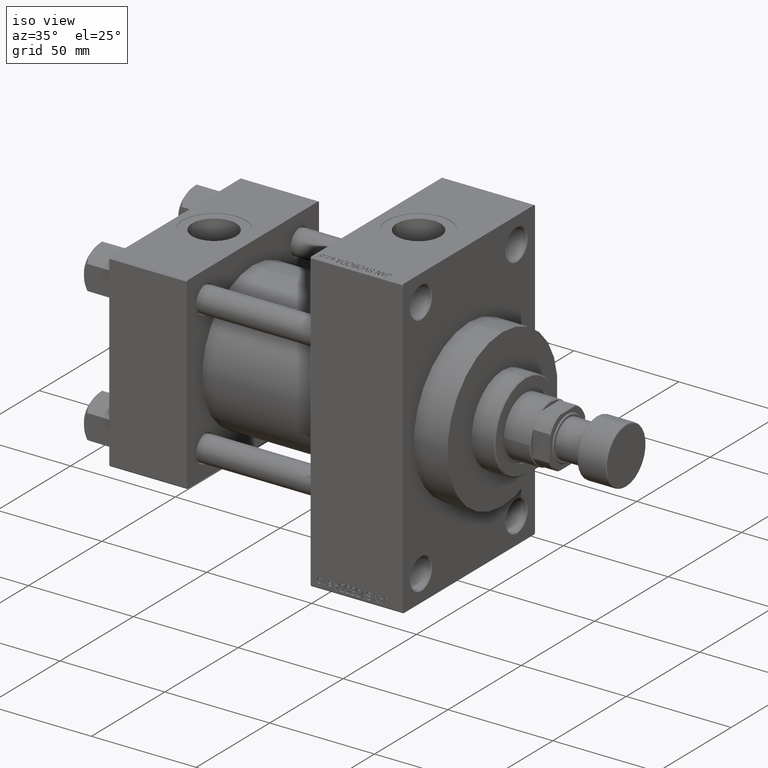
[diagram: clean part render]
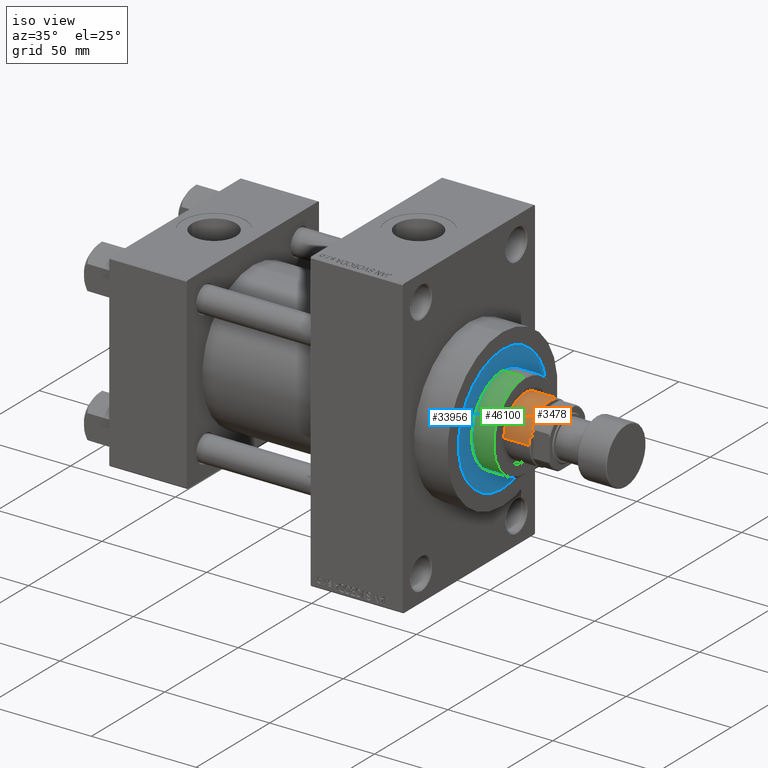
[diagram: same view with three faces highlighted in distinct colors, each labeled with its STEP entity id]
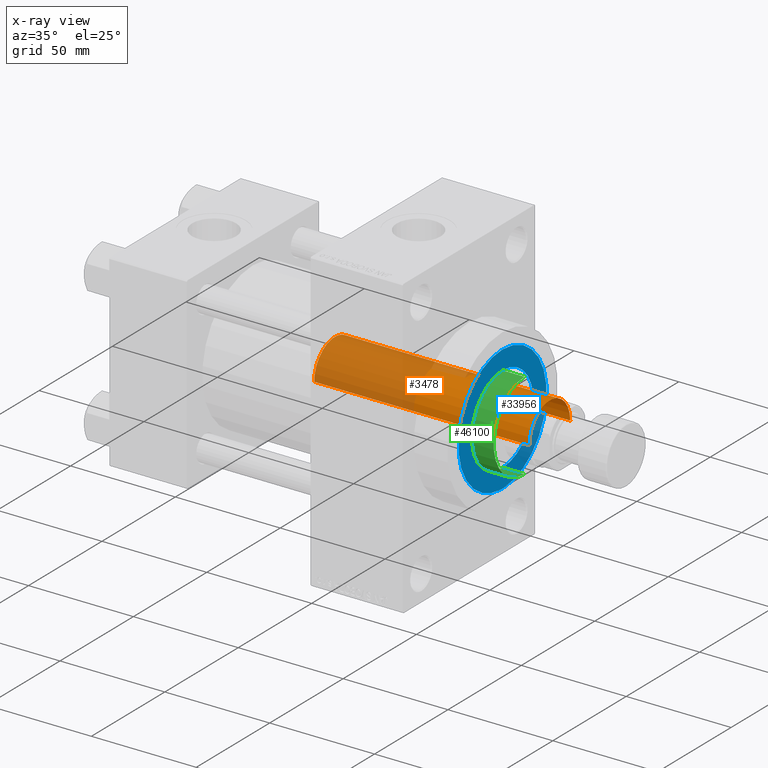
[diagram: x-ray of the same camera — body ghosted, the three highlighted faces saturated]
A machine part, iso view with three faces highlighted in distinct colors.
The next image is the same camera in x-ray (body ghosted, the three faces saturated) — at least one of them is partly hidden behind the body in this view.
Their STEP definitions:

[orange] entity #3478 — the highlighted cylindrical surface (edge-blend (fillet) strip) has radius 14 mm, axis along (-1, 0, 0).
#1417 = DIRECTION ( 'NONE',  ( 1.000000000000000000, 0.000000000000000000, 0.000000000000000000 ) ) ;
#1749 = LINE ( 'NONE', #37942, #23324 ) ;
#2419 = CARTESIAN_POINT ( 'NONE',  ( -14.00000000000000000, 0.000000000000000000, 141.5000000000000000 ) ) ;
#3478 = ADVANCED_FACE ( 'NONE', ( #19991 ), #31314, .T. ) ;
#7130 = DIRECTION ( 'NONE',  ( 1.000000000000000000, 0.000000000000000000, 0.000000000000000000 ) ) ;
#7936 = VERTEX_POINT ( 'NONE', #15333 ) ;
#8944 = EDGE_LOOP ( 'NONE', ( #19237, #32512, #42383, #46097 ) ) ;
#9697 = VERTEX_POINT ( 'NONE', #45314 ) ;
#13221 = DIRECTION ( 'NONE',  ( -1.000000000000000000, 0.000000000000000000, 0.000000000000000000 ) ) ;
#15333 = CARTESIAN_POINT ( 'NONE',  ( 14.00000000000000000, 1.714505518806294638E-15, 39.00000000000000000 ) ) ;
#17272 = CARTESIAN_POINT ( 'NONE',  ( 0.000000000000000000, 0.000000000000000000, 39.00000000000000000 ) ) ;
#19237 = ORIENTED_EDGE ( 'NONE', *, *, #19826, .F. ) ;
#19542 = AXIS2_PLACEMENT_3D ( 'NONE', #17272, #32215, #7130 ) ;
#19770 = CARTESIAN_POINT ( 'NONE',  ( 0.000000000000000000, 0.000000000000000000, 141.5000000000000000 ) ) ;
#19826 = EDGE_CURVE ( 'NONE', #25274, #7936, #1749, .T. ) ;
#19991 = FACE_OUTER_BOUND ( 'NONE', #8944, .T. ) ;
#20946 = CARTESIAN_POINT ( 'NONE',  ( -14.00000000000000000, 0.000000000000000000, 142.0000000000000000 ) ) ;
#21557 = AXIS2_PLACEMENT_3D ( 'NONE', #45998, #42629, #13221 ) ;
#23171 = AXIS2_PLACEMENT_3D ( 'NONE', #19770, #24091, #1417 ) ;
#23305 = EDGE_CURVE ( 'NONE', #35771, #9697, #31797, .T. ) ;
#23324 = VECTOR ( 'NONE', #37465, 1000.000000000000000 ) ;
#24091 = DIRECTION ( 'NONE',  ( 0.000000000000000000, 0.000000000000000000, -1.000000000000000000 ) ) ;
#24586 = EDGE_CURVE ( 'NONE', #9697, #7936, #45717, .T. ) ;
#25274 = VERTEX_POINT ( 'NONE', #27929 ) ;
#27929 = CARTESIAN_POINT ( 'NONE',  ( 14.00000000000000000, 1.714505518806294638E-15, 141.5000000000000000 ) ) ;
#28711 = VECTOR ( 'NONE', #46486, 1000.000000000000000 ) ;
#31314 = CYLINDRICAL_SURFACE ( 'NONE', #21557, 14.00000000000000000 ) ;
#31797 = LINE ( 'NONE', #20946, #28711 ) ;
#32215 = DIRECTION ( 'NONE',  ( 0.000000000000000000, 0.000000000000000000, 1.000000000000000000 ) ) ;
#32512 = ORIENTED_EDGE ( 'NONE', *, *, #38865, .T. ) ;
#35771 = VERTEX_POINT ( 'NONE', #2419 ) ;
#37465 = DIRECTION ( 'NONE',  ( -0.000000000000000000, -0.000000000000000000, -1.000000000000000000 ) ) ;
#37942 = CARTESIAN_POINT ( 'NONE',  ( 14.00000000000000000, 1.714505518806294638E-15, 142.0000000000000000 ) ) ;
#38865 = EDGE_CURVE ( 'NONE', #25274, #35771, #41640, .T. ) ;
#41640 = CIRCLE ( 'NONE', #23171, 14.00000000000000000 ) ;
#42383 = ORIENTED_EDGE ( 'NONE', *, *, #23305, .T. ) ;
#42629 = DIRECTION ( 'NONE',  ( -0.000000000000000000, -0.000000000000000000, -1.000000000000000000 ) ) ;
#45314 = CARTESIAN_POINT ( 'NONE',  ( -14.00000000000000000, 0.000000000000000000, 39.00000000000000000 ) ) ;
#45717 = CIRCLE ( 'NONE', #19542, 14.00000000000000000 ) ;
#45998 = CARTESIAN_POINT ( 'NONE',  ( 0.000000000000000000, 0.000000000000000000, 142.0000000000000000 ) ) ;
#46097 = ORIENTED_EDGE ( 'NONE', *, *, #24586, .T. ) ;
#46486 = DIRECTION ( 'NONE',  ( -0.000000000000000000, -0.000000000000000000, -1.000000000000000000 ) ) ;

[blue] entity #33956 — the highlighted planar face has unit normal (1, 0, 0).
#627 = VERTEX_POINT ( 'NONE', #44273 ) ;
#1702 = CIRCLE ( 'NONE', #17901, 21.00000000000000000 ) ;
#1858 = CARTESIAN_POINT ( 'NONE',  ( 21.00000000000000000, 2.571758278209441661E-15, 43.25999999999999801 ) ) ;
#3538 = DIRECTION ( 'NONE',  ( 1.000000000000000000, 0.000000000000000000, 0.000000000000000000 ) ) ;
#3653 = DIRECTION ( 'NONE',  ( 0.000000000000000000, 0.000000000000000000, 1.000000000000000000 ) ) ;
#5386 = DIRECTION ( 'NONE',  ( 0.000000000000000000, 0.000000000000000000, 1.000000000000000000 ) ) ;
#5627 = DIRECTION ( 'NONE',  ( 1.000000000000000000, 0.000000000000000000, 0.000000000000000000 ) ) ;
#6925 = AXIS2_PLACEMENT_3D ( 'NONE', #42101, #37777, #30541 ) ;
#6926 = EDGE_LOOP ( 'NONE', ( #25894, #30712 ) ) ;
#6982 = ORIENTED_EDGE ( 'NONE', *, *, #13621, .T. ) ;
#12019 = CIRCLE ( 'NONE', #37433, 30.00000000000000000 ) ;
#13186 = DIRECTION ( 'NONE',  ( 1.000000000000000000, 0.000000000000000000, 0.000000000000000000 ) ) ;
#13319 = CARTESIAN_POINT ( 'NONE',  ( -30.00000000000000000, 0.000000000000000000, 43.25999999999999801 ) ) ;
#13621 = EDGE_CURVE ( 'NONE', #44444, #38500, #23902, .T. ) ;
#14215 = CARTESIAN_POINT ( 'NONE',  ( 30.00000000000000000, 3.673940397442059178E-15, 43.25999999999999801 ) ) ;
#17628 = EDGE_CURVE ( 'NONE', #627, #43371, #1702, .T. ) ;
#17901 = AXIS2_PLACEMENT_3D ( 'NONE', #45966, #46202, #13186 ) ;
#19088 = CARTESIAN_POINT ( 'NONE',  ( 0.000000000000000000, 0.000000000000000000, 43.25999999999999801 ) ) ;
#23902 = CIRCLE ( 'NONE', #6925, 30.00000000000000000 ) ;
#25894 = ORIENTED_EDGE ( 'NONE', *, *, #17628, .F. ) ;
#26311 = FACE_BOUND ( 'NONE', #6926, .T. ) ;
#28049 = CARTESIAN_POINT ( 'NONE',  ( 0.000000000000000000, 0.000000000000000000, 43.25999999999999801 ) ) ;
#30192 = EDGE_CURVE ( 'NONE', #43371, #627, #40496, .T. ) ;
#30541 = DIRECTION ( 'NONE',  ( 1.000000000000000000, 0.000000000000000000, 0.000000000000000000 ) ) ;
#30693 = EDGE_CURVE ( 'NONE', #38500, #44444, #12019, .T. ) ;
#30712 = ORIENTED_EDGE ( 'NONE', *, *, #30192, .F. ) ;
#33063 = FACE_OUTER_BOUND ( 'NONE', #34792, .T. ) ;
#33956 = ADVANCED_FACE ( 'NONE', ( #26311, #33063 ), #41015, .T. ) ;
#34792 = EDGE_LOOP ( 'NONE', ( #43017, #6982 ) ) ;
#36103 = CARTESIAN_POINT ( 'NONE',  ( 0.000000000000000000, 0.000000000000000000, 43.25999999999999801 ) ) ;
#37433 = AXIS2_PLACEMENT_3D ( 'NONE', #36103, #43334, #3538 ) ;
#37777 = DIRECTION ( 'NONE',  ( 0.000000000000000000, 0.000000000000000000, 1.000000000000000000 ) ) ;
#38208 = AXIS2_PLACEMENT_3D ( 'NONE', #28049, #5386, #5627 ) ;
#38500 = VERTEX_POINT ( 'NONE', #13319 ) ;
#39743 = AXIS2_PLACEMENT_3D ( 'NONE', #19088, #3653, #40553 ) ;
#40496 = CIRCLE ( 'NONE', #38208, 21.00000000000000000 ) ;
#40553 = DIRECTION ( 'NONE',  ( 1.000000000000000000, 0.000000000000000000, -0.000000000000000000 ) ) ;
#41015 = PLANE ( 'NONE',  #39743 ) ;
#42101 = CARTESIAN_POINT ( 'NONE',  ( 0.000000000000000000, 0.000000000000000000, 43.25999999999999801 ) ) ;
#43017 = ORIENTED_EDGE ( 'NONE', *, *, #30693, .T. ) ;
#43334 = DIRECTION ( 'NONE',  ( 0.000000000000000000, 0.000000000000000000, 1.000000000000000000 ) ) ;
#43371 = VERTEX_POINT ( 'NONE', #1858 ) ;
#44273 = CARTESIAN_POINT ( 'NONE',  ( -21.00000000000000000, 0.000000000000000000, 43.25999999999999801 ) ) ;
#44444 = VERTEX_POINT ( 'NONE', #14215 ) ;
#45966 = CARTESIAN_POINT ( 'NONE',  ( 0.000000000000000000, 0.000000000000000000, 43.25999999999999801 ) ) ;
#46202 = DIRECTION ( 'NONE',  ( 0.000000000000000000, 0.000000000000000000, 1.000000000000000000 ) ) ;

[green] entity #46100 — the highlighted cylindrical surface (partial cylindrical patch) has radius 21 mm, axis along (-1, -0, 0).
#627 = VERTEX_POINT ( 'NONE', #44273 ) ;
#1702 = CIRCLE ( 'NONE', #17901, 21.00000000000000000 ) ;
#1756 = CARTESIAN_POINT ( 'NONE',  ( -21.00000000000000000, 0.000000000000000000, 54.26000000000000512 ) ) ;
#1858 = CARTESIAN_POINT ( 'NONE',  ( 21.00000000000000000, 2.571758278209441661E-15, 43.25999999999999801 ) ) ;
#2068 = VECTOR ( 'NONE', #24250, 1000.000000000000000 ) ;
#4161 = EDGE_LOOP ( 'NONE', ( #14811, #31542, #23736, #21357 ) ) ;
#5361 = LINE ( 'NONE', #1756, #13052 ) ;
#6889 = VERTEX_POINT ( 'NONE', #45212 ) ;
#8937 = CARTESIAN_POINT ( 'NONE',  ( 0.000000000000000000, 0.000000000000000000, 54.26000000000000512 ) ) ;
#9196 = VERTEX_POINT ( 'NONE', #24940 ) ;
#11987 = EDGE_CURVE ( 'NONE', #9196, #627, #5361, .T. ) ;
#13052 = VECTOR ( 'NONE', #30696, 1000.000000000000000 ) ;
#13186 = DIRECTION ( 'NONE',  ( 1.000000000000000000, 0.000000000000000000, 0.000000000000000000 ) ) ;
#13270 = CYLINDRICAL_SURFACE ( 'NONE', #16381, 21.00000000000000000 ) ;
#14811 = ORIENTED_EDGE ( 'NONE', *, *, #36134, .F. ) ;
#16381 = AXIS2_PLACEMENT_3D ( 'NONE', #8937, #31362, #27978 ) ;
#16652 = FACE_OUTER_BOUND ( 'NONE', #4161, .T. ) ;
#17628 = EDGE_CURVE ( 'NONE', #627, #43371, #1702, .T. ) ;
#17856 = EDGE_CURVE ( 'NONE', #6889, #9196, #34058, .T. ) ;
#17901 = AXIS2_PLACEMENT_3D ( 'NONE', #45966, #46202, #13186 ) ;
#18012 = CARTESIAN_POINT ( 'NONE',  ( 0.000000000000000000, 0.000000000000000000, 53.76000000000001933 ) ) ;
#21357 = ORIENTED_EDGE ( 'NONE', *, *, #17628, .T. ) ;
#23736 = ORIENTED_EDGE ( 'NONE', *, *, #11987, .T. ) ;
#24250 = DIRECTION ( 'NONE',  ( -0.000000000000000000, -0.000000000000000000, -1.000000000000000000 ) ) ;
#24940 = CARTESIAN_POINT ( 'NONE',  ( -21.00000000000000000, 0.000000000000000000, 53.76000000000001933 ) ) ;
#27856 = CARTESIAN_POINT ( 'NONE',  ( 21.00000000000000000, 2.571758278209441661E-15, 54.26000000000000512 ) ) ;
#27978 = DIRECTION ( 'NONE',  ( -1.000000000000000000, 0.000000000000000000, 0.000000000000000000 ) ) ;
#30696 = DIRECTION ( 'NONE',  ( -0.000000000000000000, -0.000000000000000000, -1.000000000000000000 ) ) ;
#31362 = DIRECTION ( 'NONE',  ( -0.000000000000000000, -0.000000000000000000, -1.000000000000000000 ) ) ;
#31542 = ORIENTED_EDGE ( 'NONE', *, *, #17856, .T. ) ;
#32707 = DIRECTION ( 'NONE',  ( 0.000000000000000000, 0.000000000000000000, -1.000000000000000000 ) ) ;
#34058 = CIRCLE ( 'NONE', #43293, 21.00000000000000000 ) ;
#36134 = EDGE_CURVE ( 'NONE', #6889, #43371, #42315, .T. ) ;
#42315 = LINE ( 'NONE', #27856, #2068 ) ;
#43293 = AXIS2_PLACEMENT_3D ( 'NONE', #18012, #32707, #47405 ) ;
#43371 = VERTEX_POINT ( 'NONE', #1858 ) ;
#44273 = CARTESIAN_POINT ( 'NONE',  ( -21.00000000000000000, 0.000000000000000000, 43.25999999999999801 ) ) ;
#45212 = CARTESIAN_POINT ( 'NONE',  ( 21.00000000000000000, 2.571758278209441661E-15, 53.76000000000001933 ) ) ;
#45966 = CARTESIAN_POINT ( 'NONE',  ( 0.000000000000000000, 0.000000000000000000, 43.25999999999999801 ) ) ;
#46100 = ADVANCED_FACE ( 'NONE', ( #16652 ), #13270, .T. ) ;
#46202 = DIRECTION ( 'NONE',  ( 0.000000000000000000, 0.000000000000000000, 1.000000000000000000 ) ) ;
#47405 = DIRECTION ( 'NONE',  ( 1.000000000000000000, 0.000000000000000000, 0.000000000000000000 ) ) ;